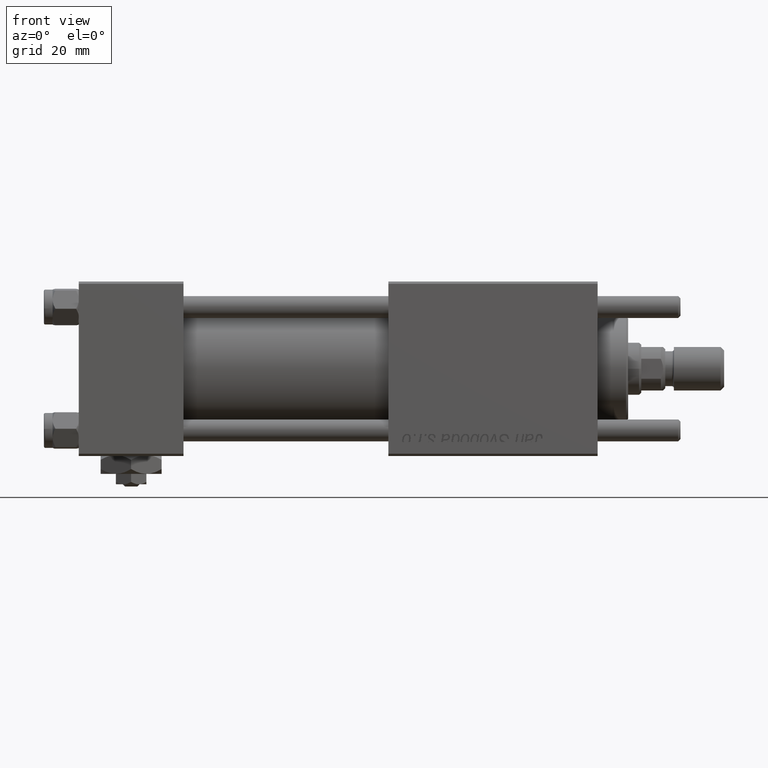
[diagram: clean part render]
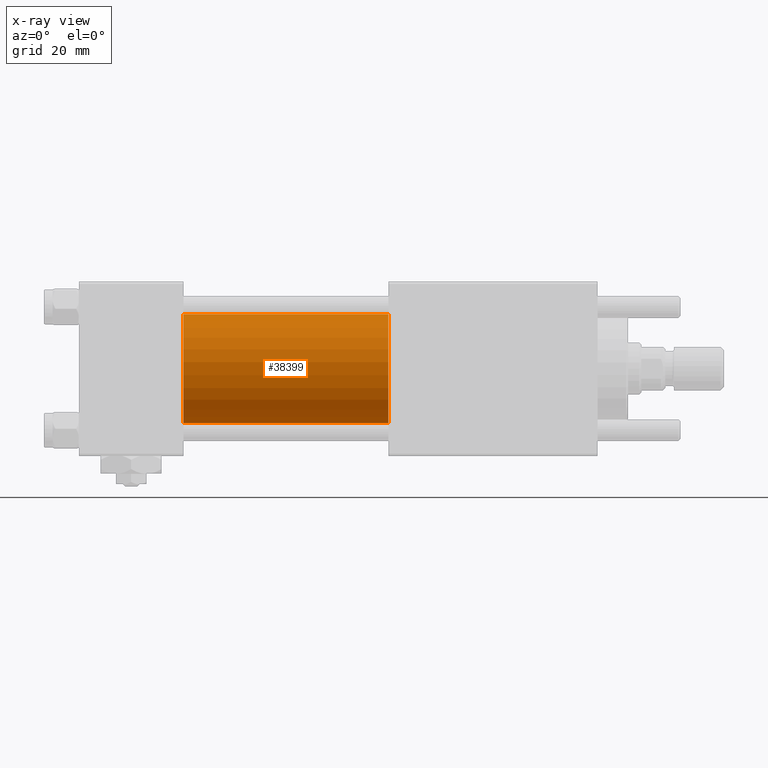
[diagram: x-ray — body ghosted, one internal face saturated and labeled with its STEP entity id]
A machine part, front view, then the same camera in x-ray: the body is ghosted and one INTERNAL B-rep face — a face not visible from any outside direction — is saturated and labeled: STEP entity #38399.
In plain terms, the highlighted cylindrical surface (partial cylindrical patch) has radius 12.5 mm, axis along (-1, -0, -0).
Its self-contained STEP definition (entity closure, byte-faithful):
#4775 = ORIENTED_EDGE ( 'NONE', *, *, #58551, .F. ) ;
#5281 = CARTESIAN_POINT ( 'NONE',  ( 24.00000000000000000, -2.602085213965210642E-15, 0.000000000000000000 ) ) ;
#9493 = DIRECTION ( 'NONE',  ( 1.000000000000000000, 0.000000000000000000, 0.000000000000000000 ) ) ;
#9618 = AXIS2_PLACEMENT_3D ( 'NONE', #43856, #9493, #27684 ) ;
#9676 = AXIS2_PLACEMENT_3D ( 'NONE', #37408, #19830, #51381 ) ;
#12469 = CIRCLE ( 'NONE', #9618, 12.49999999999999645 ) ;
#13727 = EDGE_CURVE ( 'NONE', #36250, #34530, #14523, .T. ) ;
#14288 = ORIENTED_EDGE ( 'NONE', *, *, #33937, .F. ) ;
#14523 = LINE ( 'NONE', #32977, #29946 ) ;
#17702 = CARTESIAN_POINT ( 'NONE',  ( 71.00000000000001421, -2.602085213965210642E-15, 12.49999999999999645 ) ) ;
#19830 = DIRECTION ( 'NONE',  ( -1.000000000000000000, -0.000000000000000000, -0.000000000000000000 ) ) ;
#25259 = CARTESIAN_POINT ( 'NONE',  ( 71.00000000000001421, -1.071276715031019515E-15, -12.49999999999999645 ) ) ;
#26490 = DIRECTION ( 'NONE',  ( -1.000000000000000000, -0.000000000000000000, -0.000000000000000000 ) ) ;
#27684 = DIRECTION ( 'NONE',  ( 0.000000000000000000, 0.000000000000000000, -1.000000000000000000 ) ) ;
#27899 = CYLINDRICAL_SURFACE ( 'NONE', #9676, 12.49999999999999645 ) ;
#28256 = ORIENTED_EDGE ( 'NONE', *, *, #13727, .T. ) ;
#28827 = DIRECTION ( 'NONE',  ( -1.000000000000000000, -0.000000000000000000, -0.000000000000000000 ) ) ;
#29946 = VECTOR ( 'NONE', #28827, 1000.000000000000000 ) ;
#31505 = AXIS2_PLACEMENT_3D ( 'NONE', #5281, #50842, #42220 ) ;
#32635 = EDGE_LOOP ( 'NONE', ( #47336, #28256, #4775, #14288 ) ) ;
#32977 = CARTESIAN_POINT ( 'NONE',  ( 71.00000000000001421, -1.071276715031019515E-15, -12.49999999999999645 ) ) ;
#33937 = EDGE_CURVE ( 'NONE', #41568, #52097, #58354, .T. ) ;
#34530 = VERTEX_POINT ( 'NONE', #52478 ) ;
#36250 = VERTEX_POINT ( 'NONE', #25259 ) ;
#37408 = CARTESIAN_POINT ( 'NONE',  ( 71.00000000000001421, -2.602085213965210642E-15, 0.000000000000000000 ) ) ;
#38399 = ADVANCED_FACE ( 'NONE', ( #41870 ), #27899, .F. ) ;
#41568 = VERTEX_POINT ( 'NONE', #17702 ) ;
#41870 = FACE_OUTER_BOUND ( 'NONE', #32635, .T. ) ;
#41912 = EDGE_CURVE ( 'NONE', #41568, #36250, #12469, .T. ) ;
#42220 = DIRECTION ( 'NONE',  ( 0.000000000000000000, 0.000000000000000000, -1.000000000000000000 ) ) ;
#42836 = VECTOR ( 'NONE', #26490, 1000.000000000000000 ) ;
#43856 = CARTESIAN_POINT ( 'NONE',  ( 71.00000000000001421, -2.602085213965210642E-15, 0.000000000000000000 ) ) ;
#47336 = ORIENTED_EDGE ( 'NONE', *, *, #41912, .T. ) ;
#48213 = CARTESIAN_POINT ( 'NONE',  ( 71.00000000000001421, -2.602085213965210642E-15, 12.49999999999999645 ) ) ;
#50842 = DIRECTION ( 'NONE',  ( 1.000000000000000000, 0.000000000000000000, 0.000000000000000000 ) ) ;
#51381 = DIRECTION ( 'NONE',  ( 0.000000000000000000, 0.000000000000000000, 1.000000000000000000 ) ) ;
#52097 = VERTEX_POINT ( 'NONE', #57337 ) ;
#52478 = CARTESIAN_POINT ( 'NONE',  ( 24.00000000000000000, -1.071276715031019515E-15, -12.49999999999999645 ) ) ;
#55252 = CIRCLE ( 'NONE', #31505, 12.49999999999999645 ) ;
#57337 = CARTESIAN_POINT ( 'NONE',  ( 24.00000000000000000, -2.602085213965210642E-15, 12.49999999999999645 ) ) ;
#58354 = LINE ( 'NONE', #48213, #42836 ) ;
#58551 = EDGE_CURVE ( 'NONE', #52097, #34530, #55252, .T. ) ;